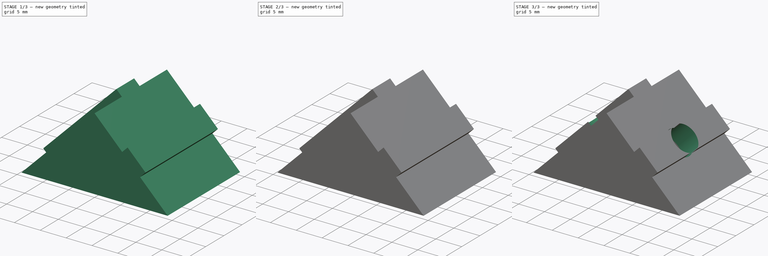
[diagram: build sequence overview — one tinted view per stage of 3, left to right]
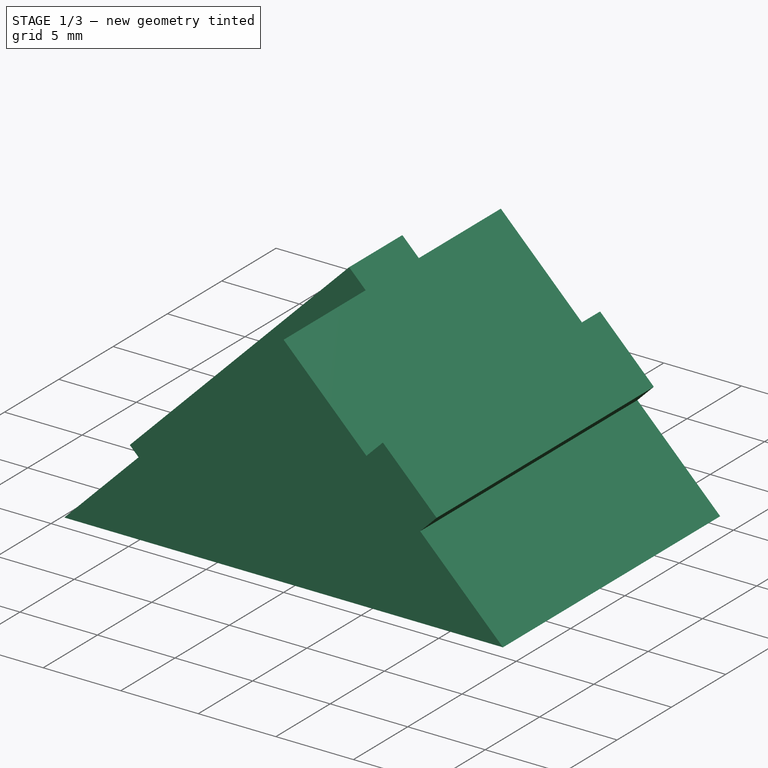
[diagram: stage 1 of 3 — iso view after this stage's code; geometry added in this stage tinted green]
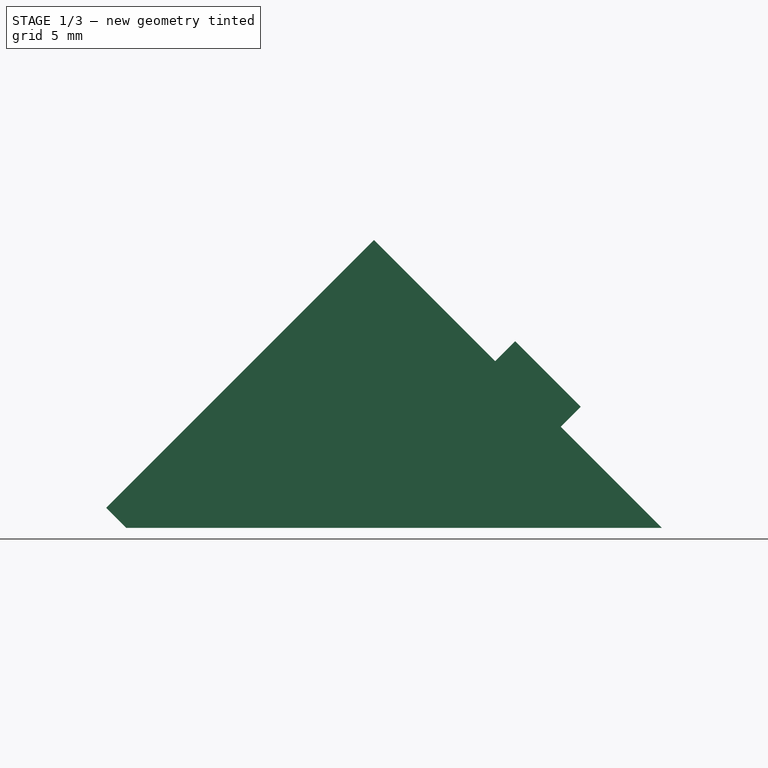
[diagram: stage 1 of 3 — front view after this stage's code; geometry added in this stage tinted green]
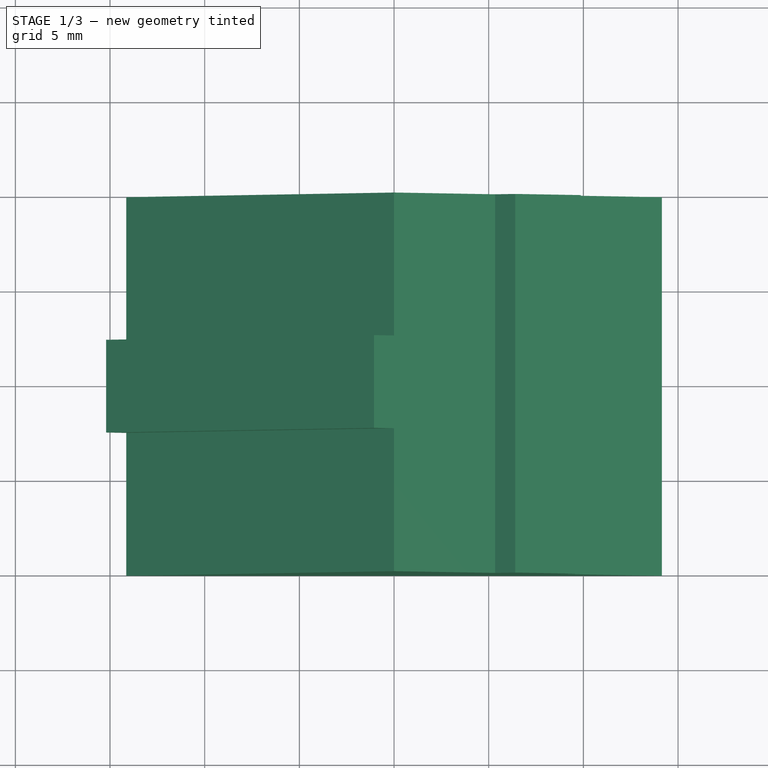
[diagram: stage 1 of 3 — top view after this stage's code; geometry added in this stage tinted green]
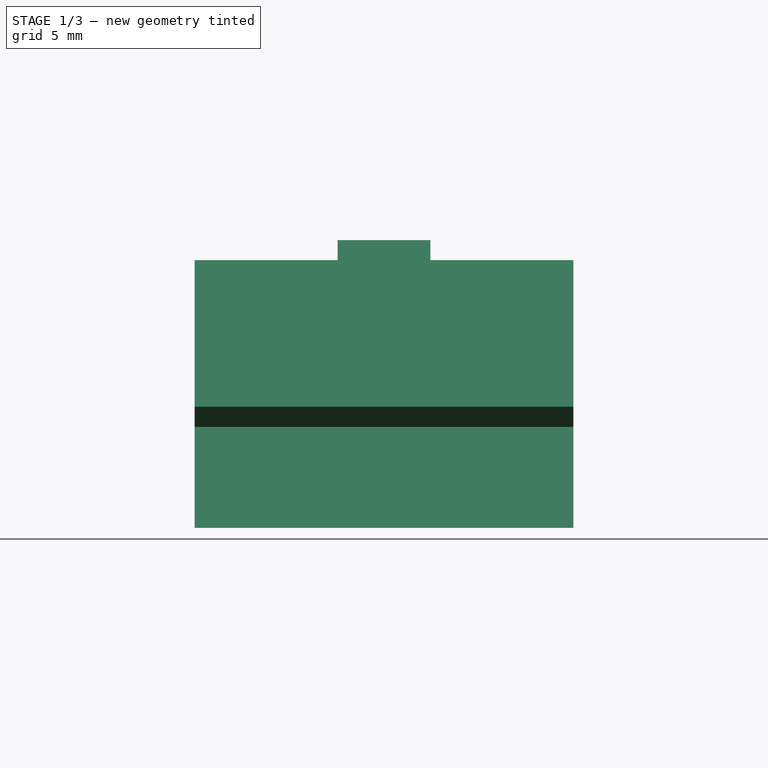
[diagram: stage 1 of 3 — right view after this stage's code; geometry added in this stage tinted green]
FCSTD DOCUMENT  (FreeCAD 0.19R20209 (Git))
Label: 2020Cornor
License: Creative Commons Attribution
LicenseURL: http://creativecommons.org/licenses/by/4.0/
objects: Sketcher::SketchObject×5, PartDesign::Pocket×3, PartDesign::Pad×2, PartDesign::Body×1
note: 16 computed .brp shape members not serialized (recipe doc carries the construction recipe); baked Part::Feature solids carry a one-line shape summary decoded from their .brp

FEATURE [Sketcher::SketchObject] Sketch
  MapMode = 5
  Placement = pos=(0,0,0) rot=(1,0,0;1.5708rad)
  Support = -> [XZ_Plane]
  sketch-geometry (9):
    g0: LineSegment StartX=0 StartY=14.1421 StartZ=0 EndX=-14.1421 EndY=0 EndZ=0
    g1: LineSegment StartX=-14.1421 StartY=0 StartZ=0 EndX=14.1421 EndY=0 EndZ=0
    g2: Circle [constr] CenterX=0 CenterY=0 CenterZ=0 NormalX=0 NormalY=0 NormalZ=1 AngleXU=0 Radius=14.1421
    g3: LineSegment StartX=8.80348 StartY=5.33866 StartZ=0 EndX=9.86414 EndY=6.39932 EndZ=0
    g4: LineSegment StartX=9.86414 StartY=6.39932 StartZ=0 EndX=6.39932 EndY=9.86414 EndZ=0
    g5: LineSegment StartX=6.39932 StartY=9.86414 StartZ=0 EndX=5.33866 EndY=8.80348 EndZ=0
    g6: GeomPoint X=7.07107 Y=7.07107 Z=0
    g7: LineSegment StartX=0 StartY=14.1421 StartZ=0 EndX=5.33866 EndY=8.80348 EndZ=0
    g8: LineSegment StartX=8.80348 StartY=5.33866 StartZ=0 EndX=14.1421 EndY=0 EndZ=0
  constraints (22):
    c: Coincident(g0,g1)
    c: PointOnObject(g0,g2)
    c: PointOnObject(g0,g2)
    c: Horizontal(g1,g0)
    c: Distance(g0,g1) = 20
    c: Coincident(g2,g-1)
    c: Coincident(g3,g4)
    c: Coincident(g4,g5)
    c: Angle(g5,g4) = 1.5708
    c: Angle(g4,g3) = 1.5708
    c: Distance(g4) = 4.9
    c: Symmetric(g0,g1,g6)
    c: Symmetric(g3,g5,g6)
    c: Coincident(g7,g0)
    c: Coincident(g7,g5)
    c: Coincident(g8,g3)
    c: Coincident(g8,g1)
    c: PointOnObject(g0,g-2)
    c: Parallel(g4,g7)
    c: Equal(g3,g5)
    c: Symmetric(g1,g0,g-1)
    c: Distance(g4,g5) = 1.5
FEATURE [PartDesign::Pad] Pad
  Length = 20
  Length2 = 100
  Midplane = true
  Placement = pos=(0,0,0) rot=(1,0,0;1.5708rad)
  Profile = -> Sketch
  Refine = true
  Type = 0
FEATURE [Sketcher::SketchObject] Sketch001
  ExternalGeometry = -> [Pad]
  MapMode = 5
  Placement = pos=(0,0,0) rot=(1,0,0;1.5708rad)
  Support = -> [XZ_Plane]
  sketch-geometry (4):
    g0: LineSegment StartX=0 StartY=14.1421 StartZ=0 EndX=-14.1421 EndY=1.8e-15 EndZ=0
    g1: LineSegment StartX=-14.1421 StartY=1.8e-15 StartZ=0 EndX=-15.2028 EndY=1.06066 EndZ=0
    g2: LineSegment StartX=-15.2028 StartY=1.06066 StartZ=0 EndX=-1.06066 EndY=15.2028 EndZ=0
    g3: LineSegment StartX=-1.06066 StartY=15.2028 StartZ=0 EndX=0 EndY=14.1421 EndZ=0
  constraints (11):
    c: Coincident(g0,g1)
    c: Coincident(g1,g2)
    c: Coincident(g2,g3)
    c: Coincident(g3,g0)
    c: Equal(g2,g0)
    c: Equal(g3,g1)
    c: Distance(g3) = 1.5
    c: Distance(g0,g0) = 20
    c: Angle(g3,g0) = 1.5708
    c: Parallel(g0,g-3)
    c: Coincident(g0,g-3)
FEATURE [PartDesign::Pad] Pad001
  BaseFeature = -> Pad
  Length = 4.9
  Length2 = 100
  Midplane = true
  Placement = pos=(0,0,0) rot=(1,0,0;1.5708rad)
  Profile = -> Sketch001
  Refine = true
  Type = 0
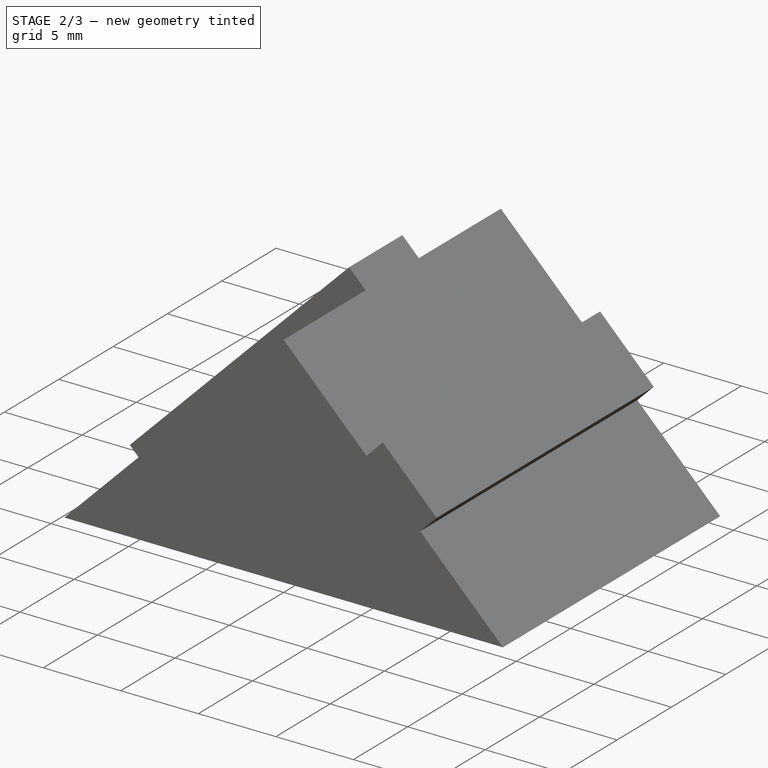
[diagram: stage 2 of 3 — iso view after this stage's code; geometry added in this stage tinted green]
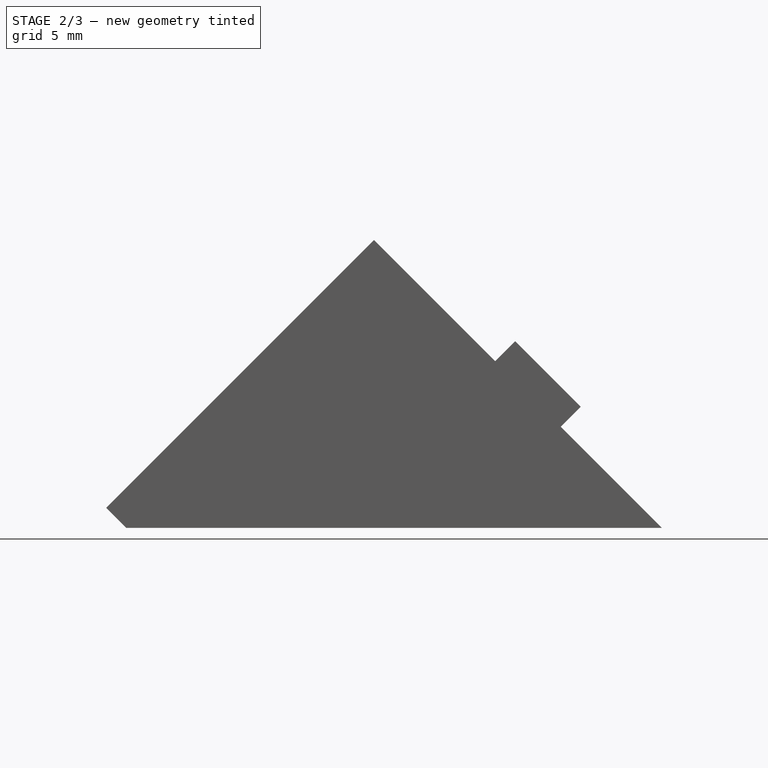
[diagram: stage 2 of 3 — front view after this stage's code; geometry added in this stage tinted green]
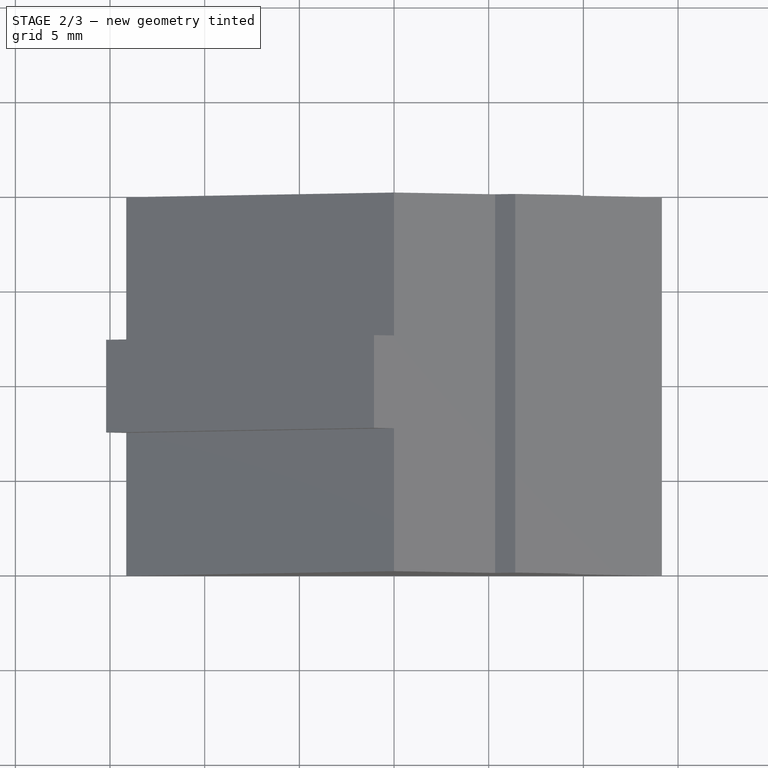
[diagram: stage 2 of 3 — top view after this stage's code; geometry added in this stage tinted green]
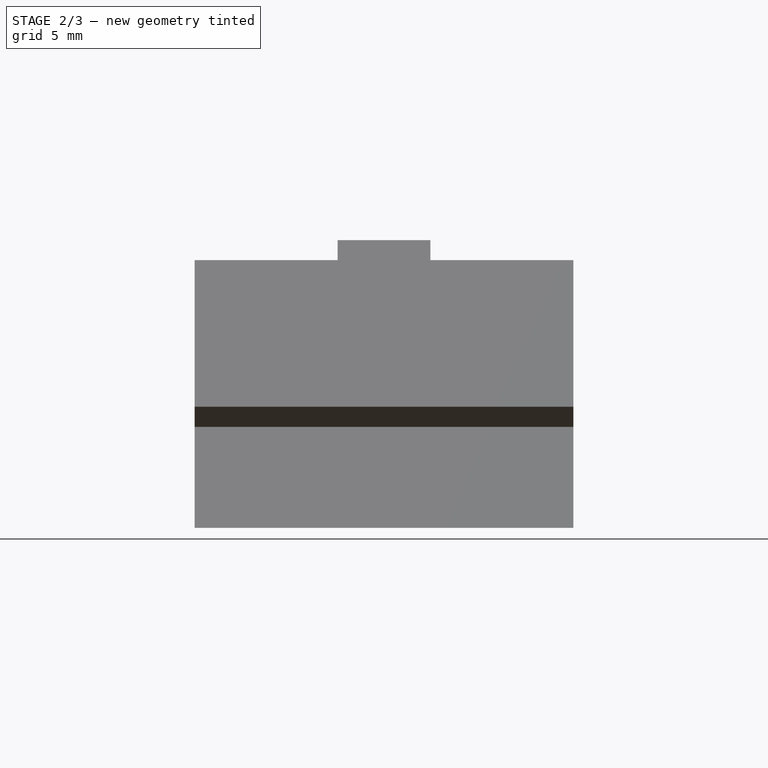
[diagram: stage 2 of 3 — right view after this stage's code; geometry added in this stage tinted green]
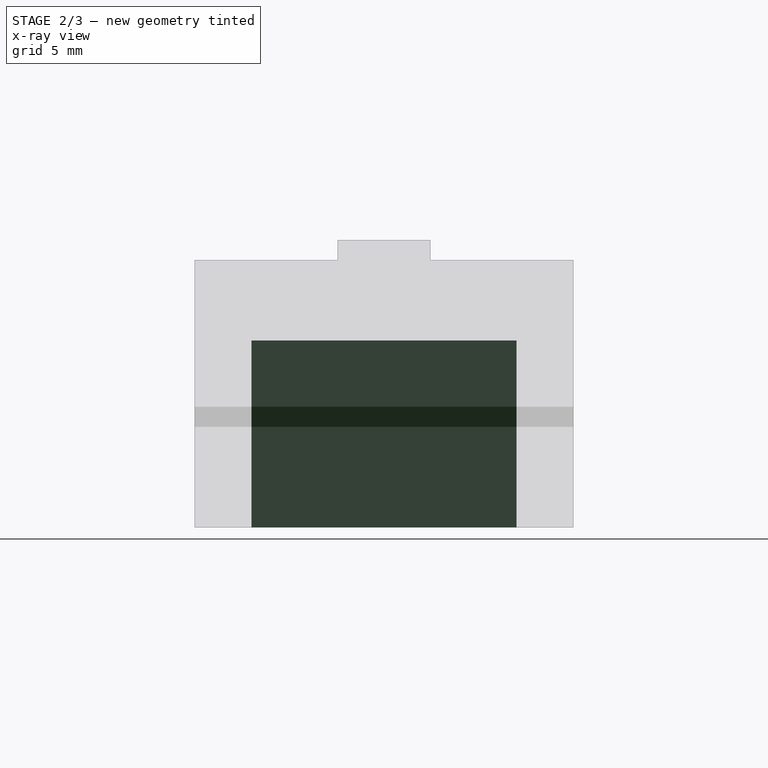
[diagram: stage 2 of 3 — x-ray composite at the right view; earlier geometry ghosted, this stage's added geometry solid]
FEATURE [Sketcher::SketchObject] Sketch002
  ExternalGeometry = -> [Pad001]
  MapMode = 5
  Placement = pos=(0,0,0) rot=(1,0,0;1.5708rad)
  Support = -> [XZ_Plane]
  sketch-geometry (4):
    g0: LineSegment StartX=-9.89949 StartY=0 StartZ=0 EndX=-3.6e-15 EndY=9.89949 EndZ=0
    g1: LineSegment StartX=-3.6e-15 StartY=9.89949 StartZ=0 EndX=9.89949 EndY=0 EndZ=0
    g2: LineSegment StartX=9.89949 StartY=0 StartZ=0 EndX=-9.89949 EndY=0 EndZ=0
    g3: LineSegment [constr] StartX=0 StartY=14.1421 StartZ=0 EndX=2.12132 EndY=12.0208 EndZ=0
  constraints (11):
    c: Coincident(g0,g1)
    c: Coincident(g1,g2)
    c: Horizontal(g2)
    c: Coincident(g2,g0)
    c: Symmetric(g0,g1,g-1)
    c: Parallel(g-3,g0)
    c: Equal(g0,g1)
    c: PointOnObject(g3,g0)
    c: Parallel(g3,g1)
    c: Coincident(g3,g-3)
    c: Distance(g3) = 3
FEATURE [PartDesign::Pocket] Pocket
  BaseFeature = -> Pad001
  Length = 14
  Length2 = 100
  Midplane = true
  Placement = pos=(0,0,0) rot=(1,0,0;1.5708rad)
  Profile = -> Sketch002
  Refine = true
  Type = 0
  expr: Length = 20 - 6
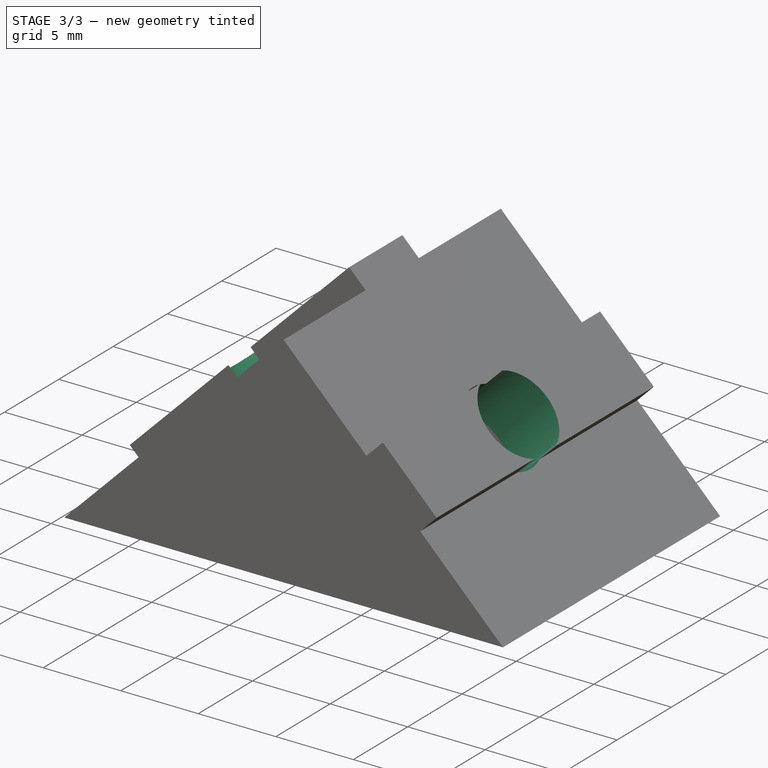
[diagram: stage 3 of 3 — iso view after this stage's code; geometry added in this stage tinted green]
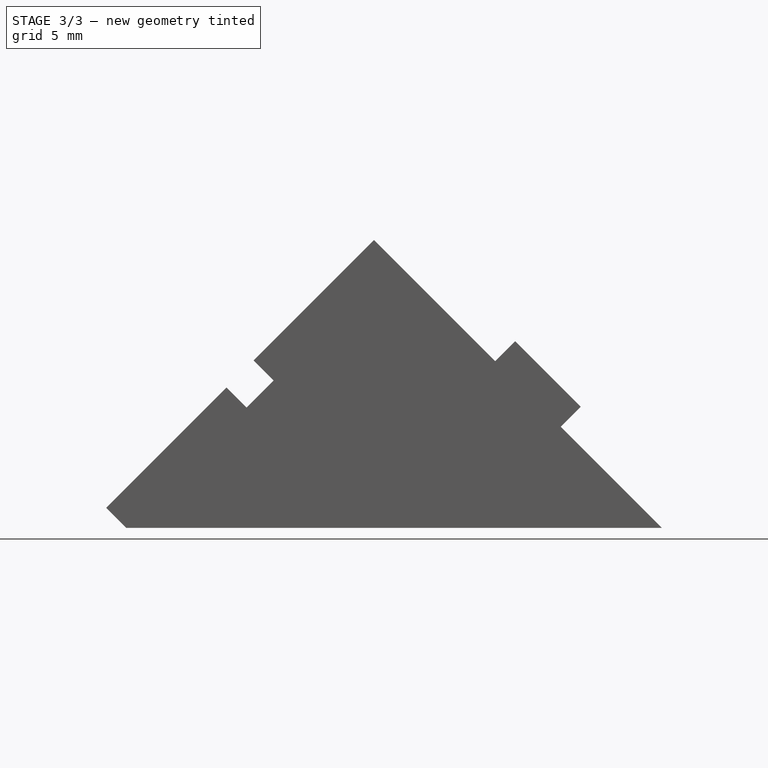
[diagram: stage 3 of 3 — front view after this stage's code; geometry added in this stage tinted green]
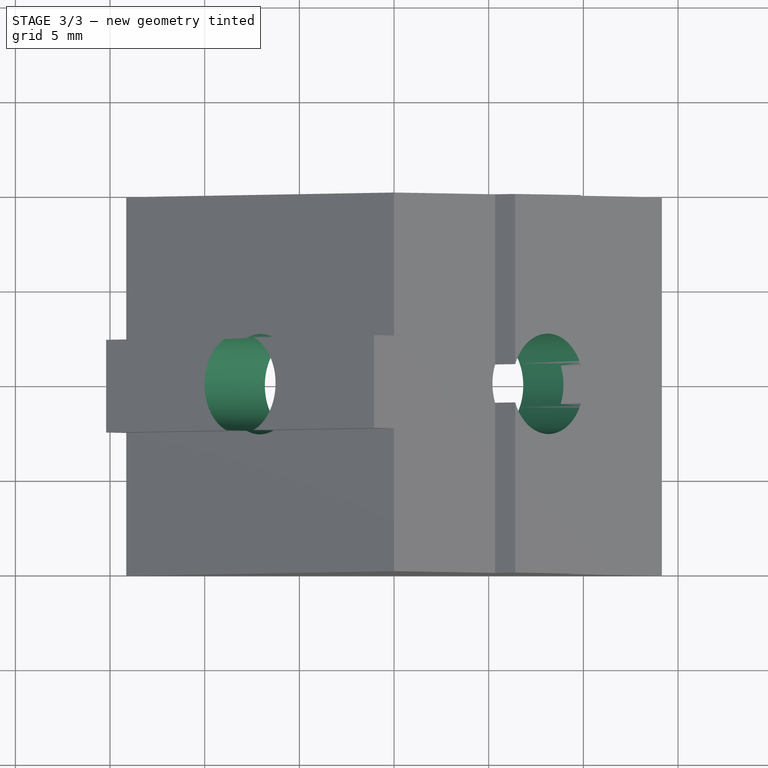
[diagram: stage 3 of 3 — top view after this stage's code; geometry added in this stage tinted green]
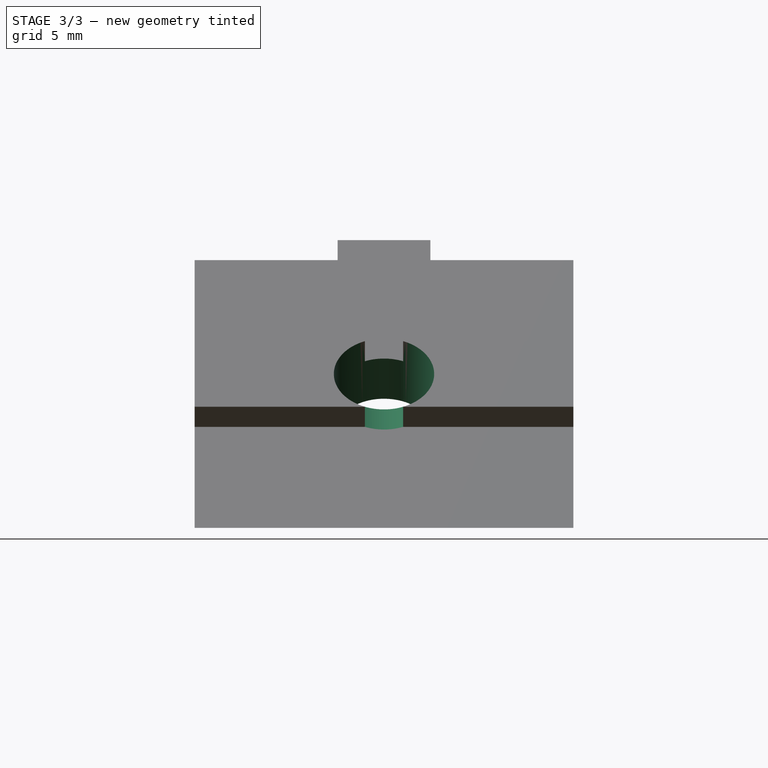
[diagram: stage 3 of 3 — right view after this stage's code; geometry added in this stage tinted green]
FEATURE [Sketcher::SketchObject] Sketch003
  MapMode = 5
  Placement = pos=(4.94975,-1.1e-15,4.94975) rot=(0.92388,0,-0.382683;3.14159rad)
  Support = -> [Pocket]
  sketch-geometry (1):
    g0: Circle CenterX=0 CenterY=0 CenterZ=0 NormalX=0 NormalY=0 NormalZ=1 AngleXU=0 Radius=2.65
  constraints (2):
    c: Coincident(g0,g-1)
    c: Diameter(g0) = 5.3
FEATURE [PartDesign::Pocket] Pocket001
  BaseFeature = -> Pocket
  Length = 5
  Length2 = 100
  Placement = pos=(0,0,0) rot=(1,0,0;1.5708rad)
  Profile = -> Sketch003
  Refine = true
  Type = 1
FEATURE [Sketcher::SketchObject] Sketch004
  MapMode = 5
  Placement = pos=(-4.94975,-1.1e-15,4.94975) rot=(0.92388,0,0.382683;3.14159rad)
  Support = -> [Pocket001]
  sketch-geometry (1):
    g0: Circle CenterX=0 CenterY=0 CenterZ=0 NormalX=0 NormalY=0 NormalZ=1 AngleXU=0 Radius=2.65
  constraints (2):
    c: Coincident(g0,g-1)
    c: Diameter(g0) = 5.3
FEATURE [PartDesign::Pocket] Pocket002
  BaseFeature = -> Pocket001
  Length = 5
  Length2 = 100
  Placement = pos=(0,0,0) rot=(1,0,0;1.5708rad)
  Profile = -> Sketch004
  Refine = true
  Type = 0
FEATURE [PartDesign::Body] Body
  Group = -> [Sketch,Pad,Sketch001,Pad001,Sketch002,Pocket,Sketch003,Pocket001,Sketch004,Pocket002]
  Origin = -> Origin
  Tip = -> Pocket002
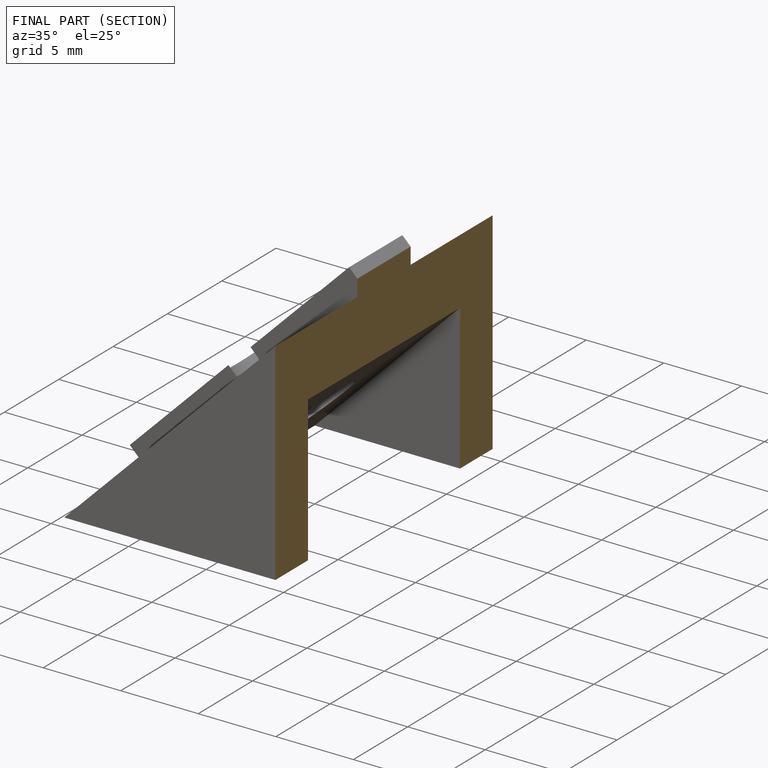
[diagram: finished part — half-section view (interior)]
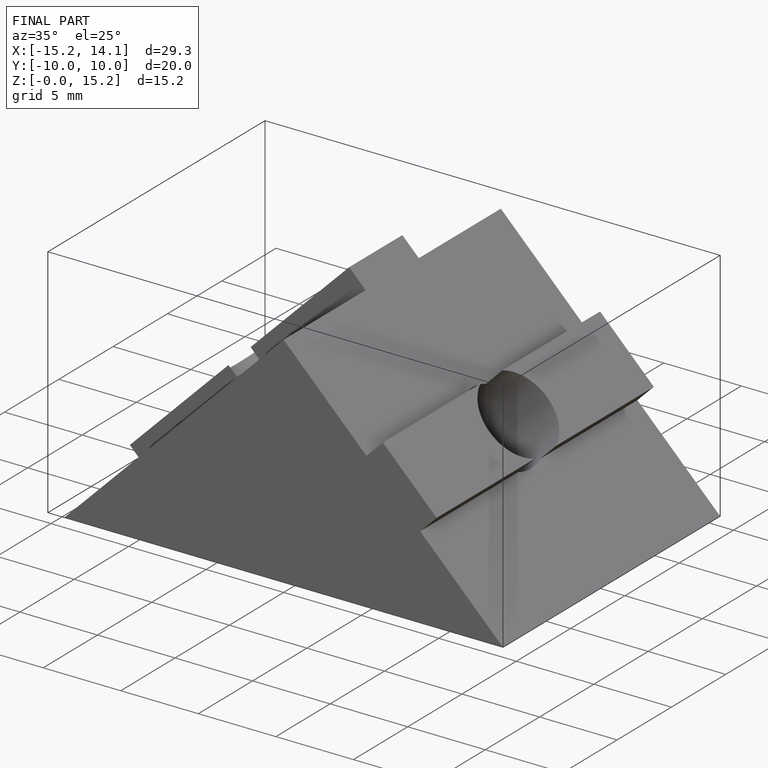
[diagram: finished part — iso view with bounding-box wireframe]
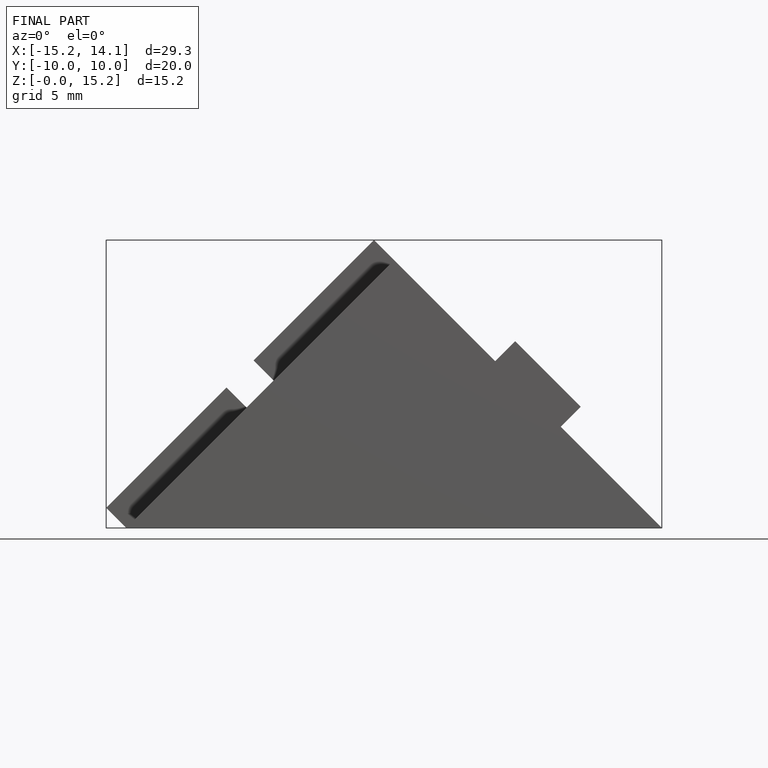
[diagram: finished part — front view with bounding-box wireframe]
